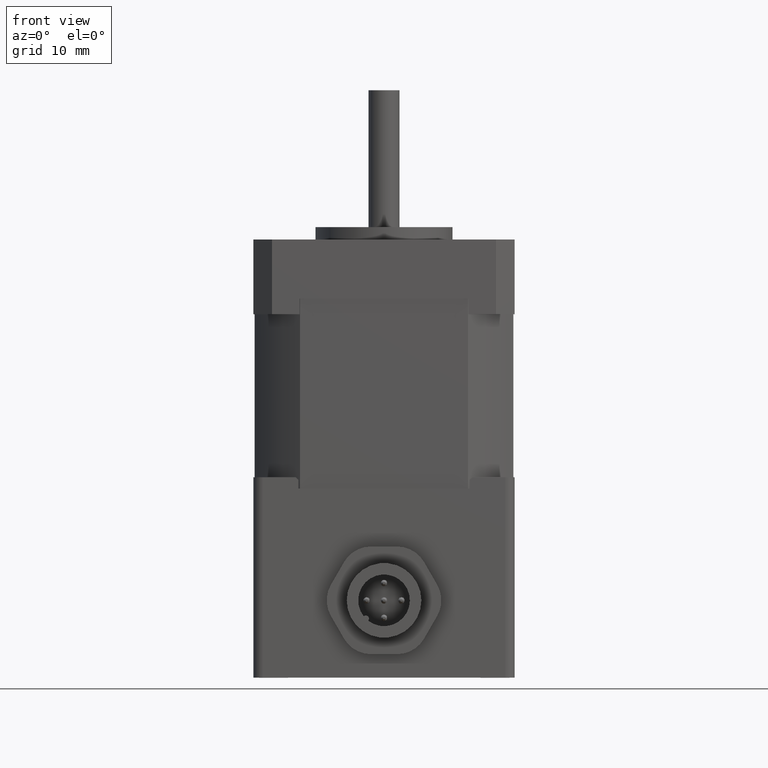
[diagram: clean part render]
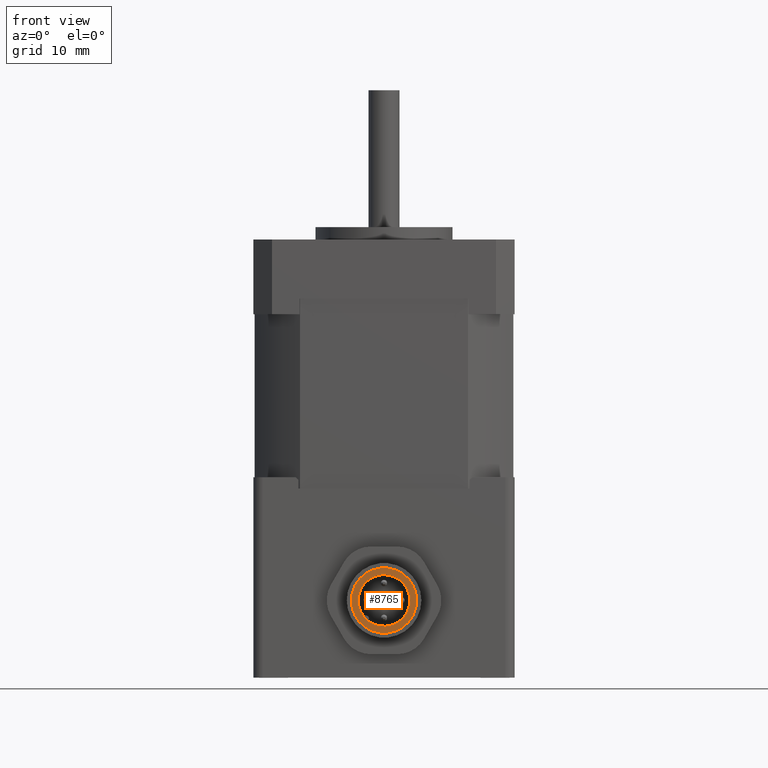
[diagram: same view with one face highlighted and labeled with its STEP entity id]
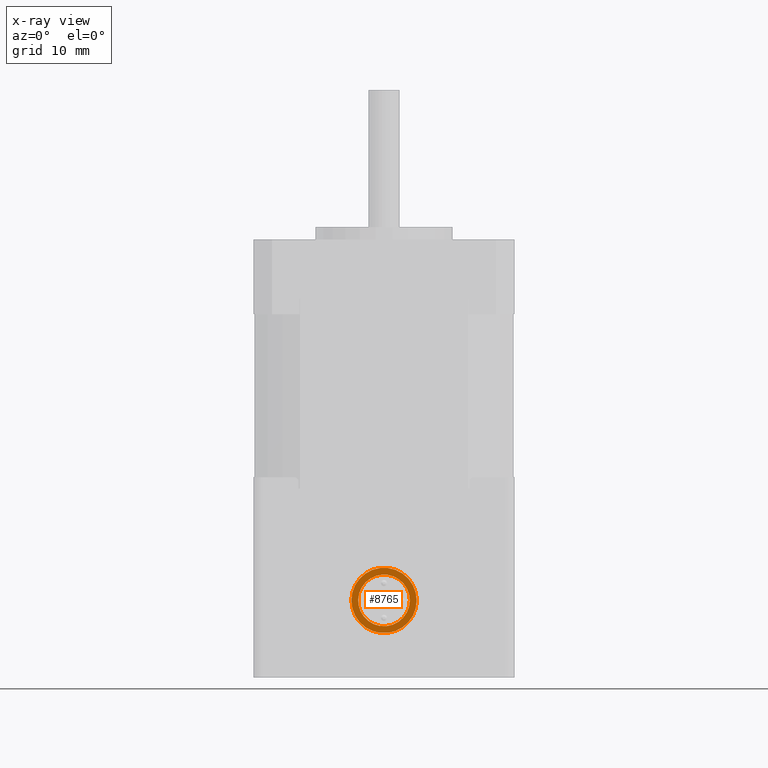
[diagram: x-ray of the same camera — body ghosted, the highlighted face saturated]
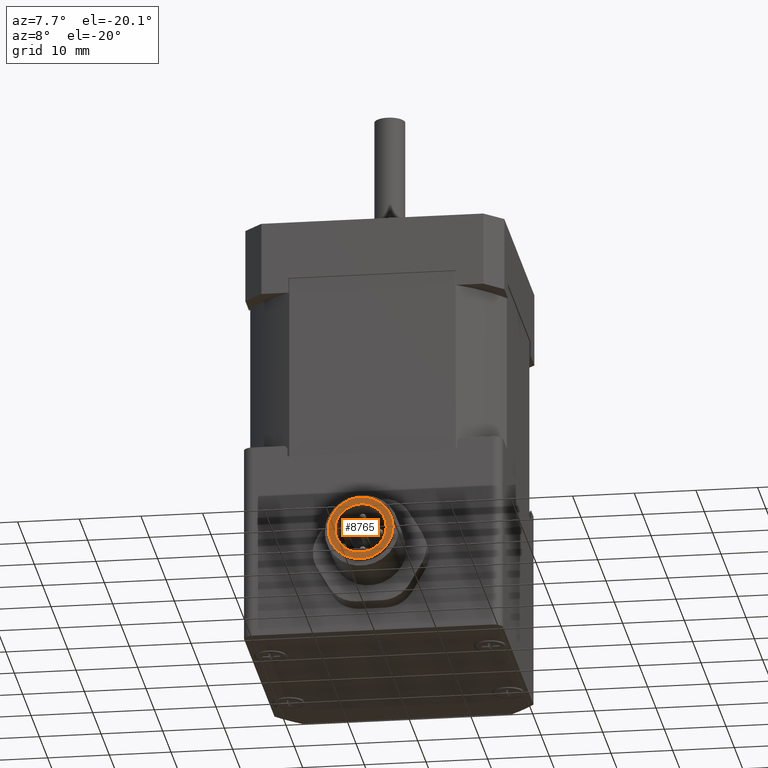
[diagram: same view with one face highlighted and labeled with its STEP entity id]
A machine part, front view. The second image highlights one B-rep face of the part: STEP entity #8765.
The next image is the same camera in x-ray: the body ghosted, the highlighted face saturated — about 0% of this face is hidden behind the body in this view.
A second angle (auxiliary view) of the same face is appended — the face is thin or edge-on in the first view.
In plain terms, the highlighted planar face has unit normal (0, 1, 0).
Its self-contained STEP definition (entity closure, byte-faithful):
#8714=CARTESIAN_POINT('',(4.150000000000000,5.082284E-016,14.000000000000004));
#8715=VERTEX_POINT('',#8714);
#8716=CARTESIAN_POINT('',(0.0,0.0,14.000000000000004));
#8717=DIRECTION('',(0.0,0.0,-1.0));
#8718=DIRECTION('',(-1.0,0.0,0.0));
#8719=AXIS2_PLACEMENT_3D('',#8716,#8717,#8718);
#8720=CIRCLE('',#8719,4.150000000000000);
#8721=EDGE_CURVE('',#8715,#8715,#8720,.T.);
#8731=CARTESIAN_POINT('',(5.250000000000000,6.429396E-016,14.000000000000004));
#8732=VERTEX_POINT('',#8731);
#8733=CARTESIAN_POINT('',(0.0,0.0,14.000000000000004));
#8734=DIRECTION('',(0.0,0.0,-1.0));
#8735=DIRECTION('',(-1.0,0.0,0.0));
#8736=AXIS2_PLACEMENT_3D('',#8733,#8734,#8735);
#8737=CIRCLE('',#8736,5.250000000000000);
#8738=EDGE_CURVE('',#8732,#8732,#8737,.T.);
#8754=CARTESIAN_POINT('',(0.0,0.0,14.000000000000004));
#8755=DIRECTION('',(0.0,0.0,-1.0));
#8756=DIRECTION('',(-1.0,0.0,0.0));
#8757=AXIS2_PLACEMENT_3D('',#8754,#8755,#8756);
#8758=PLANE('',#8757);
#8759=ORIENTED_EDGE('',*,*,#8738,.F.);
#8760=EDGE_LOOP('',(#8759));
#8761=FACE_OUTER_BOUND('',#8760,.T.);
#8762=ORIENTED_EDGE('',*,*,#8721,.T.);
#8763=EDGE_LOOP('',(#8762));
#8764=FACE_BOUND('',#8763,.T.);
#8765=ADVANCED_FACE('',(#8761,#8764),#8758,.F.);